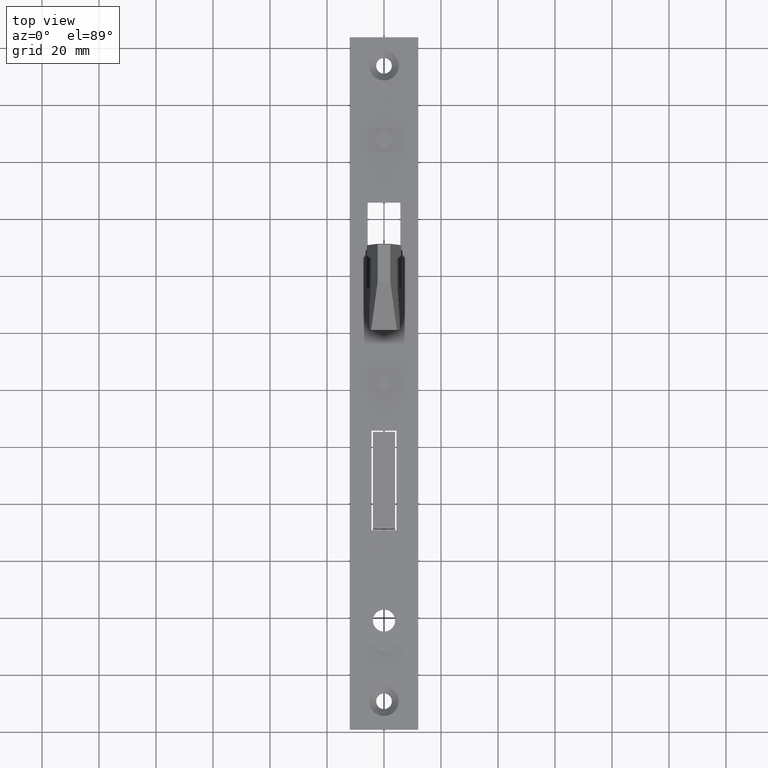
[diagram: clean part render]
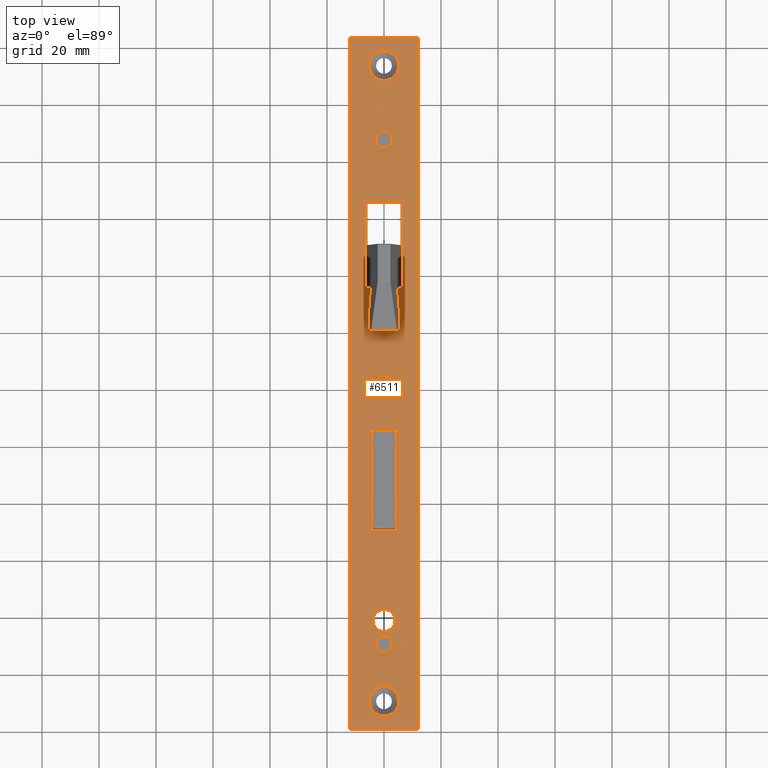
[diagram: same view with one face highlighted and labeled with its STEP entity id]
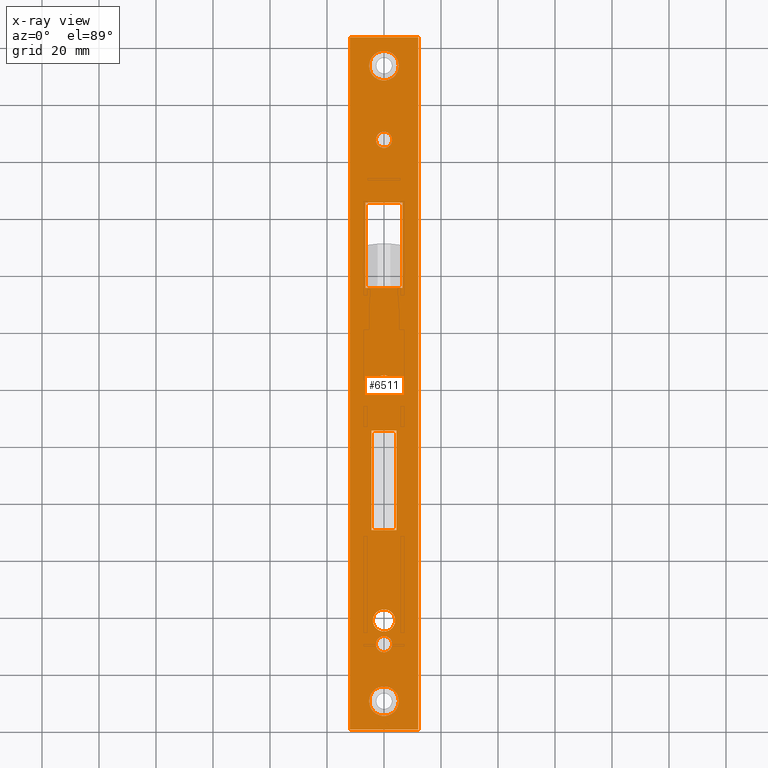
[diagram: x-ray of the same camera — body ghosted, the highlighted face saturated]
A machine part, top view. The second image highlights one B-rep face of the part: STEP entity #6511.
The next image is the same camera in x-ray: the body ghosted, the highlighted face saturated — about 0% of this face is hidden behind the body in this view.
In plain terms, the highlighted planar face has unit normal (0, 0, -1).
Its self-contained STEP definition (entity closure, byte-faithful):
#79 = CARTESIAN_POINT ( 'NONE',  ( -4.400000000000001243, 70.00000000000000000, 3.000000000000000000 ) ) ;
#80 = CARTESIAN_POINT ( 'NONE',  ( -6.499999999999999112, 155.0000000000000568, 3.000000000000000000 ) ) ;
#124 = CARTESIAN_POINT ( 'NONE',  ( 0.000000000000000000, 38.29999999999999716, 3.000000000000000000 ) ) ;
#256 = CARTESIAN_POINT ( 'NONE',  ( -6.499999999999999112, 185.0000000000000568, 3.000000000000000000 ) ) ;
#264 = ORIENTED_EDGE ( 'NONE', *, *, #4805, .F. ) ;
#335 = DIRECTION ( 'NONE',  ( 1.000000000000000000, 0.000000000000000000, 0.000000000000000000 ) ) ;
#510 = CARTESIAN_POINT ( 'NONE',  ( 3.900000000000002132, 38.29999999999999716, 3.000000000000000000 ) ) ;
#545 = FACE_OUTER_BOUND ( 'NONE', #8484, .T. ) ;
#612 = EDGE_CURVE ( 'NONE', #9409, #3721, #2055, .T. ) ;
#743 = ORIENTED_EDGE ( 'NONE', *, *, #9573, .F. ) ;
#848 = DIRECTION ( 'NONE',  ( -0.000000000000000000, -0.000000000000000000, 1.000000000000000000 ) ) ;
#849 = CARTESIAN_POINT ( 'NONE',  ( -2.699999999999998845, 155.0000000000000284, 3.000000000000000000 ) ) ;
#938 = LINE ( 'NONE', #2182, #3126 ) ;
#991 = EDGE_LOOP ( 'NONE', ( #11255 ) ) ;
#1122 = DIRECTION ( 'NONE',  ( -0.000000000000000000, -1.000000000000000000, -0.000000000000000000 ) ) ;
#1138 = DIRECTION ( 'NONE',  ( -1.000000000000000000, 0.000000000000000000, 0.000000000000000000 ) ) ;
#1279 = DIRECTION ( 'NONE',  ( -1.000000000000000000, -0.000000000000000000, -0.000000000000000000 ) ) ;
#1298 = DIRECTION ( 'NONE',  ( 0.000000000000000000, 1.000000000000000000, 0.000000000000000000 ) ) ;
#1347 = FACE_BOUND ( 'NONE', #8844, .T. ) ;
#1399 = CIRCLE ( 'NONE', #11707, 2.849999999999976108 ) ;
#1401 = EDGE_CURVE ( 'NONE', #4837, #3391, #938, .T. ) ;
#1498 = FACE_BOUND ( 'NONE', #2117, .T. ) ;
#1520 = CARTESIAN_POINT ( 'NONE',  ( 4.400000000000001243, 105.0000000000000142, 3.000000000000000000 ) ) ;
#1607 = VERTEX_POINT ( 'NONE', #256 ) ;
#1618 = ORIENTED_EDGE ( 'NONE', *, *, #2041, .F. ) ;
#1652 = EDGE_LOOP ( 'NONE', ( #9363 ) ) ;
#1718 = VECTOR ( 'NONE', #3977, 1000.000000000000000 ) ;
#1782 = VERTEX_POINT ( 'NONE', #1520 ) ;
#1979 = CARTESIAN_POINT ( 'NONE',  ( 12.00000000000000000, 0.000000000000000000, 3.000000000000000000 ) ) ;
#2012 = DIRECTION ( 'NONE',  ( 0.000000000000000000, 1.000000000000000000, 0.000000000000000000 ) ) ;
#2041 = EDGE_CURVE ( 'NONE', #2750, #4837, #10800, .T. ) ;
#2055 = LINE ( 'NONE', #2788, #8531 ) ;
#2117 = EDGE_LOOP ( 'NONE', ( #8196 ) ) ;
#2166 = LINE ( 'NONE', #12107, #4158 ) ;
#2182 = CARTESIAN_POINT ( 'NONE',  ( 6.500000000000000000, 155.0000000000000568, 3.000000000000000000 ) ) ;
#2275 = LINE ( 'NONE', #4169, #9955 ) ;
#2334 = VERTEX_POINT ( 'NONE', #7737 ) ;
#2336 = DIRECTION ( 'NONE',  ( -1.000000000000000000, -0.000000000000000000, -0.000000000000000000 ) ) ;
#2409 = CARTESIAN_POINT ( 'NONE',  ( -2.849999999999971667, 207.0000000000000000, 3.000000000000000000 ) ) ;
#2483 = VERTEX_POINT ( 'NONE', #11412 ) ;
#2497 = CARTESIAN_POINT ( 'NONE',  ( 5.200000000000001066, 9.999999999999994671, 3.000000000000000000 ) ) ;
#2598 = DIRECTION ( 'NONE',  ( -1.000000000000000000, 0.000000000000000000, -0.000000000000000000 ) ) ;
#2672 = CARTESIAN_POINT ( 'NONE',  ( -12.00000000000000000, 243.0000000000000000, 3.000000000000000000 ) ) ;
#2750 = VERTEX_POINT ( 'NONE', #11334 ) ;
#2769 = VERTEX_POINT ( 'NONE', #2497 ) ;
#2788 = CARTESIAN_POINT ( 'NONE',  ( -12.00000000000000000, 0.000000000000000000, 3.000000000000000000 ) ) ;
#2789 = CARTESIAN_POINT ( 'NONE',  ( 4.653657836759938785E-15, 207.0000000000000000, 3.000000000000000000 ) ) ;
#2915 = CARTESIAN_POINT ( 'NONE',  ( 4.400000000000001243, 70.00000000000000000, 3.000000000000000000 ) ) ;
#2927 = CIRCLE ( 'NONE', #4825, 2.850000000000014744 ) ;
#2958 = DIRECTION ( 'NONE',  ( 0.000000000000000000, 0.000000000000000000, 1.000000000000000000 ) ) ;
#2995 = EDGE_CURVE ( 'NONE', #7989, #7989, #1399, .T. ) ;
#3096 = VERTEX_POINT ( 'NONE', #9909 ) ;
#3126 = VECTOR ( 'NONE', #1298, 1000.000000000000000 ) ;
#3251 = VECTOR ( 'NONE', #2336, 1000.000000000000000 ) ;
#3361 = LINE ( 'NONE', #1979, #8284 ) ;
#3369 = DIRECTION ( 'NONE',  ( -1.000000000000000000, 0.000000000000000000, 0.000000000000000000 ) ) ;
#3391 = VERTEX_POINT ( 'NONE', #10983 ) ;
#3565 = DIRECTION ( 'NONE',  ( 1.000000000000000000, 0.000000000000000000, 0.000000000000000000 ) ) ;
#3608 = DIRECTION ( 'NONE',  ( -0.000000000000000000, -0.000000000000000000, 1.000000000000000000 ) ) ;
#3659 = FACE_BOUND ( 'NONE', #991, .T. ) ;
#3721 = VERTEX_POINT ( 'NONE', #11408 ) ;
#3958 = AXIS2_PLACEMENT_3D ( 'NONE', #124, #2958, #5104 ) ;
#3967 = FACE_BOUND ( 'NONE', #4277, .T. ) ;
#3977 = DIRECTION ( 'NONE',  ( 1.000000000000000000, -7.304098846218136048E-15, -0.000000000000000000 ) ) ;
#4153 = EDGE_CURVE ( 'NONE', #3391, #1607, #6176, .T. ) ;
#4158 = VECTOR ( 'NONE', #4180, 1000.000000000000000 ) ;
#4169 = CARTESIAN_POINT ( 'NONE',  ( -4.400000000000001243, 105.0000000000000142, 3.000000000000000000 ) ) ;
#4180 = DIRECTION ( 'NONE',  ( 1.000000000000000000, 0.000000000000000000, 0.000000000000000000 ) ) ;
#4277 = EDGE_LOOP ( 'NONE', ( #10822, #1618, #7843, #11982 ) ) ;
#4295 = AXIS2_PLACEMENT_3D ( 'NONE', #9437, #8487, #2598 ) ;
#4417 = VECTOR ( 'NONE', #1122, 1000.000000000000000 ) ;
#4435 = FACE_BOUND ( 'NONE', #10468, .T. ) ;
#4551 = CARTESIAN_POINT ( 'NONE',  ( 4.336808689942017736E-16, 9.999999999999994671, 3.000000000000000000 ) ) ;
#4618 = VERTEX_POINT ( 'NONE', #510 ) ;
#4703 = CIRCLE ( 'NONE', #7766, 5.200000000000001066 ) ;
#4745 = FACE_BOUND ( 'NONE', #8666, .T. ) ;
#4805 = EDGE_CURVE ( 'NONE', #9662, #9731, #5078, .T. ) ;
#4825 = AXIS2_PLACEMENT_3D ( 'NONE', #8310, #8394, #3369 ) ;
#4837 = VERTEX_POINT ( 'NONE', #6252 ) ;
#5057 = ORIENTED_EDGE ( 'NONE', *, *, #6764, .T. ) ;
#5078 = LINE ( 'NONE', #10242, #5844 ) ;
#5104 = DIRECTION ( 'NONE',  ( 1.000000000000000000, 0.000000000000000000, 0.000000000000000000 ) ) ;
#5158 = DIRECTION ( 'NONE',  ( -0.000000000000000000, -0.000000000000000000, 1.000000000000000000 ) ) ;
#5394 = CARTESIAN_POINT ( 'NONE',  ( 4.336808689942017736E-16, 233.0000000000000000, 3.000000000000000000 ) ) ;
#5402 = EDGE_CURVE ( 'NONE', #4618, #4618, #7987, .T. ) ;
#5700 = DIRECTION ( 'NONE',  ( -0.000000000000000000, -1.000000000000000000, -0.000000000000000000 ) ) ;
#5844 = VECTOR ( 'NONE', #7190, 1000.000000000000000 ) ;
#5947 = CIRCLE ( 'NONE', #7516, 2.849999999999998312 ) ;
#5978 = DIRECTION ( 'NONE',  ( 0.000000000000000000, 1.000000000000000000, 0.000000000000000000 ) ) ;
#6005 = ORIENTED_EDGE ( 'NONE', *, *, #9482, .F. ) ;
#6013 = DIRECTION ( 'NONE',  ( 1.000000000000000000, 0.000000000000000000, 0.000000000000000000 ) ) ;
#6176 = LINE ( 'NONE', #6332, #3251 ) ;
#6252 = CARTESIAN_POINT ( 'NONE',  ( 6.500000000000000000, 155.0000000000000568, 3.000000000000000000 ) ) ;
#6297 = DIRECTION ( 'NONE',  ( -1.000000000000000000, -0.000000000000000000, -0.000000000000000000 ) ) ;
#6314 = CARTESIAN_POINT ( 'NONE',  ( -4.400000000000001243, 105.0000000000000142, 3.000000000000000000 ) ) ;
#6316 = VERTEX_POINT ( 'NONE', #11259 ) ;
#6332 = CARTESIAN_POINT ( 'NONE',  ( 2.699999999999999734, 185.0000000000000568, 3.000000000000000000 ) ) ;
#6421 = PLANE ( 'NONE',  #4295 ) ;
#6511 = ADVANCED_FACE ( 'NONE', ( #11203, #4745, #4435, #545, #3967, #12766, #1498, #3659, #1347 ), #6421, .F. ) ;
#6764 = EDGE_CURVE ( 'NONE', #3096, #2483, #3361, .T. ) ;
#6784 = EDGE_CURVE ( 'NONE', #1782, #9662, #2275, .T. ) ;
#7017 = CIRCLE ( 'NONE', #7867, 5.200000000000001066 ) ;
#7034 = LINE ( 'NONE', #80, #4417 ) ;
#7104 = EDGE_CURVE ( 'NONE', #1607, #2750, #7034, .T. ) ;
#7190 = DIRECTION ( 'NONE',  ( -0.000000000000000000, -1.000000000000000000, -0.000000000000000000 ) ) ;
#7226 = VERTEX_POINT ( 'NONE', #8737 ) ;
#7323 = EDGE_LOOP ( 'NONE', ( #9234 ) ) ;
#7428 = CARTESIAN_POINT ( 'NONE',  ( 5.200000000000001066, 233.0000000000000000, 3.000000000000000000 ) ) ;
#7516 = AXIS2_PLACEMENT_3D ( 'NONE', #11959, #5158, #1138 ) ;
#7737 = CARTESIAN_POINT ( 'NONE',  ( 4.400000000000001243, 70.00000000000000000, 3.000000000000000000 ) ) ;
#7766 = AXIS2_PLACEMENT_3D ( 'NONE', #4551, #3608, #3565 ) ;
#7843 = ORIENTED_EDGE ( 'NONE', *, *, #7104, .F. ) ;
#7867 = AXIS2_PLACEMENT_3D ( 'NONE', #5394, #11206, #335 ) ;
#7987 = CIRCLE ( 'NONE', #3958, 3.900000000000002132 ) ;
#7989 = VERTEX_POINT ( 'NONE', #2409 ) ;
#8006 = VECTOR ( 'NONE', #6297, 1000.000000000000000 ) ;
#8030 = EDGE_CURVE ( 'NONE', #6316, #6316, #5947, .T. ) ;
#8157 = EDGE_CURVE ( 'NONE', #2769, #2769, #4703, .T. ) ;
#8196 = ORIENTED_EDGE ( 'NONE', *, *, #8030, .F. ) ;
#8230 = CARTESIAN_POINT ( 'NONE',  ( -12.00000000000000000, 243.0000000000000000, 3.000000000000000000 ) ) ;
#8284 = VECTOR ( 'NONE', #5978, 1000.000000000000000 ) ;
#8310 = CARTESIAN_POINT ( 'NONE',  ( 1.512438796946980973E-14, 121.5000000000000142, 3.000000000000000000 ) ) ;
#8323 = LINE ( 'NONE', #8230, #8006 ) ;
#8394 = DIRECTION ( 'NONE',  ( -0.000000000000000000, -0.000000000000000000, 1.000000000000000000 ) ) ;
#8484 = EDGE_LOOP ( 'NONE', ( #9165, #11805, #5057, #8602 ) ) ;
#8487 = DIRECTION ( 'NONE',  ( 0.000000000000000000, 0.000000000000000000, -1.000000000000000000 ) ) ;
#8531 = VECTOR ( 'NONE', #5700, 1000.000000000000000 ) ;
#8563 = LINE ( 'NONE', #79, #9497 ) ;
#8602 = ORIENTED_EDGE ( 'NONE', *, *, #12429, .T. ) ;
#8666 = EDGE_LOOP ( 'NONE', ( #10666 ) ) ;
#8737 = CARTESIAN_POINT ( 'NONE',  ( -2.849999999999999645, 121.5000000000000142, 3.000000000000000000 ) ) ;
#8844 = EDGE_LOOP ( 'NONE', ( #11604 ) ) ;
#9074 = ORIENTED_EDGE ( 'NONE', *, *, #6784, .F. ) ;
#9165 = ORIENTED_EDGE ( 'NONE', *, *, #612, .T. ) ;
#9234 = ORIENTED_EDGE ( 'NONE', *, *, #5402, .F. ) ;
#9363 = ORIENTED_EDGE ( 'NONE', *, *, #9642, .F. ) ;
#9409 = VERTEX_POINT ( 'NONE', #2672 ) ;
#9437 = CARTESIAN_POINT ( 'NONE',  ( 0.000000000000000000, 0.000000000000000000, 3.000000000000000000 ) ) ;
#9482 = EDGE_CURVE ( 'NONE', #2334, #1782, #12740, .T. ) ;
#9497 = VECTOR ( 'NONE', #6013, 1000.000000000000000 ) ;
#9573 = EDGE_CURVE ( 'NONE', #9731, #2334, #8563, .T. ) ;
#9642 = EDGE_CURVE ( 'NONE', #9988, #9988, #7017, .T. ) ;
#9662 = VERTEX_POINT ( 'NONE', #6314 ) ;
#9731 = VERTEX_POINT ( 'NONE', #12293 ) ;
#9778 = DIRECTION ( 'NONE',  ( -1.000000000000000000, 0.000000000000000000, 0.000000000000000000 ) ) ;
#9909 = CARTESIAN_POINT ( 'NONE',  ( 12.00000000000000000, 0.000000000000000000, 3.000000000000000000 ) ) ;
#9955 = VECTOR ( 'NONE', #1279, 1000.000000000000000 ) ;
#9988 = VERTEX_POINT ( 'NONE', #7428 ) ;
#10242 = CARTESIAN_POINT ( 'NONE',  ( -4.400000000000001243, 70.00000000000000000, 3.000000000000000000 ) ) ;
#10468 = EDGE_LOOP ( 'NONE', ( #264, #9074, #6005, #743 ) ) ;
#10666 = ORIENTED_EDGE ( 'NONE', *, *, #8157, .F. ) ;
#10800 = LINE ( 'NONE', #849, #1718 ) ;
#10822 = ORIENTED_EDGE ( 'NONE', *, *, #1401, .F. ) ;
#10983 = CARTESIAN_POINT ( 'NONE',  ( 6.500000000000000000, 185.0000000000000568, 3.000000000000000000 ) ) ;
#11203 = FACE_BOUND ( 'NONE', #1652, .T. ) ;
#11206 = DIRECTION ( 'NONE',  ( -0.000000000000000000, -0.000000000000000000, 1.000000000000000000 ) ) ;
#11255 = ORIENTED_EDGE ( 'NONE', *, *, #12517, .F. ) ;
#11259 = CARTESIAN_POINT ( 'NONE',  ( -2.849999999999998312, 30.00000000000000000, 3.000000000000000000 ) ) ;
#11334 = CARTESIAN_POINT ( 'NONE',  ( -6.499999999999999112, 155.0000000000000568, 3.000000000000000000 ) ) ;
#11408 = CARTESIAN_POINT ( 'NONE',  ( -12.00000000000000000, 0.000000000000000000, 3.000000000000000000 ) ) ;
#11412 = CARTESIAN_POINT ( 'NONE',  ( 12.00000000000000000, 243.0000000000000000, 3.000000000000000000 ) ) ;
#11604 = ORIENTED_EDGE ( 'NONE', *, *, #2995, .F. ) ;
#11707 = AXIS2_PLACEMENT_3D ( 'NONE', #2789, #848, #9778 ) ;
#11805 = ORIENTED_EDGE ( 'NONE', *, *, #12300, .T. ) ;
#11959 = CARTESIAN_POINT ( 'NONE',  ( 0.000000000000000000, 30.00000000000000000, 3.000000000000000000 ) ) ;
#11982 = ORIENTED_EDGE ( 'NONE', *, *, #4153, .F. ) ;
#12107 = CARTESIAN_POINT ( 'NONE',  ( -12.00000000000000000, 0.000000000000000000, 3.000000000000000000 ) ) ;
#12293 = CARTESIAN_POINT ( 'NONE',  ( -4.400000000000001243, 70.00000000000000000, 3.000000000000000000 ) ) ;
#12300 = EDGE_CURVE ( 'NONE', #3721, #3096, #2166, .T. ) ;
#12429 = EDGE_CURVE ( 'NONE', #2483, #9409, #8323, .T. ) ;
#12517 = EDGE_CURVE ( 'NONE', #7226, #7226, #2927, .T. ) ;
#12580 = VECTOR ( 'NONE', #2012, 1000.000000000000000 ) ;
#12740 = LINE ( 'NONE', #2915, #12580 ) ;
#12766 = FACE_BOUND ( 'NONE', #7323, .T. ) ;